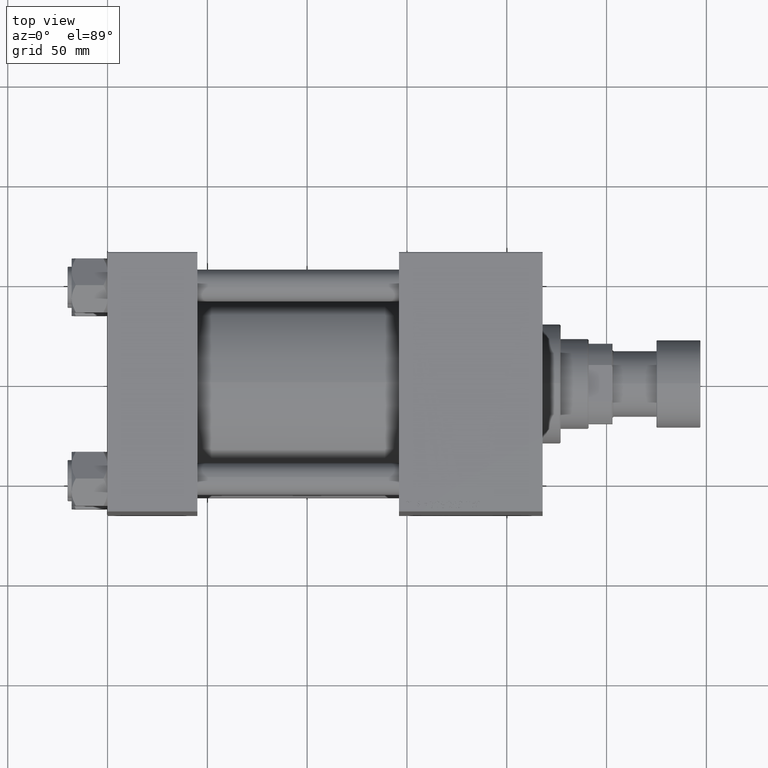
[diagram: clean part render]
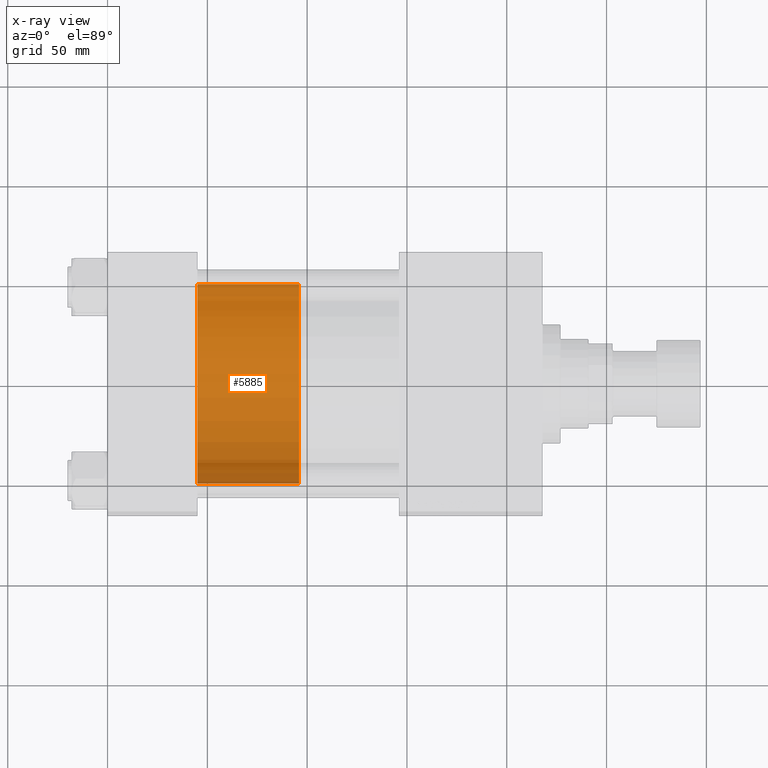
[diagram: x-ray — body ghosted, one internal face saturated and labeled with its STEP entity id]
A machine part, top view, then the same camera in x-ray: the body is ghosted and one INTERNAL B-rep face — a face not visible from any outside direction — is saturated and labeled: STEP entity #5885.
In plain terms, the highlighted cylindrical surface (partial cylindrical patch) has radius 50 mm, axis along (-1, 0, 0).
Its self-contained STEP definition (entity closure, byte-faithful):
#356 = CARTESIAN_POINT ( 'NONE',  ( 0.000000000000000000, 0.000000000000000000, 0.000000000000000000 ) ) ;
#1032 = AXIS2_PLACEMENT_3D ( 'NONE', #2696, #26511, #10978 ) ;
#2696 = CARTESIAN_POINT ( 'NONE',  ( 0.000000000000000000, 0.000000000000000000, 51.00000000000000000 ) ) ;
#3367 = VERTEX_POINT ( 'NONE', #37633 ) ;
#5885 = ADVANCED_FACE ( 'NONE', ( #46157 ), #6273, .T. ) ;
#6273 = CYLINDRICAL_SURFACE ( 'NONE', #29145, 50.00000000000000000 ) ;
#6870 = CARTESIAN_POINT ( 'NONE',  ( 50.00000000000000000, 6.123233995736766085E-15, 51.00000000000000000 ) ) ;
#8760 = VECTOR ( 'NONE', #42346, 1000.000000000000000 ) ;
#9336 = CARTESIAN_POINT ( 'NONE',  ( 50.00000000000000000, 6.123233995736766085E-15, 51.00000000000000000 ) ) ;
#10978 = DIRECTION ( 'NONE',  ( 1.000000000000000000, 0.000000000000000000, 0.000000000000000000 ) ) ;
#12541 = DIRECTION ( 'NONE',  ( 1.000000000000000000, 0.000000000000000000, 0.000000000000000000 ) ) ;
#13467 = CARTESIAN_POINT ( 'NONE',  ( -50.00000000000000000, 0.000000000000000000, 51.00000000000000000 ) ) ;
#13880 = AXIS2_PLACEMENT_3D ( 'NONE', #356, #35336, #12541 ) ;
#16355 = LINE ( 'NONE', #6870, #8760 ) ;
#18444 = DIRECTION ( 'NONE',  ( -0.000000000000000000, -0.000000000000000000, -1.000000000000000000 ) ) ;
#18828 = CIRCLE ( 'NONE', #13880, 50.00000000000000000 ) ;
#21118 = EDGE_CURVE ( 'NONE', #30617, #3367, #18828, .T. ) ;
#22001 = DIRECTION ( 'NONE',  ( -0.000000000000000000, -0.000000000000000000, -1.000000000000000000 ) ) ;
#24327 = ORIENTED_EDGE ( 'NONE', *, *, #31344, .F. ) ;
#24945 = VECTOR ( 'NONE', #22001, 1000.000000000000000 ) ;
#26455 = CARTESIAN_POINT ( 'NONE',  ( 0.000000000000000000, 0.000000000000000000, 51.00000000000000000 ) ) ;
#26511 = DIRECTION ( 'NONE',  ( 0.000000000000000000, 0.000000000000000000, 1.000000000000000000 ) ) ;
#27873 = EDGE_LOOP ( 'NONE', ( #24327, #35175, #36917, #31154 ) ) ;
#28601 = VERTEX_POINT ( 'NONE', #9336 ) ;
#29145 = AXIS2_PLACEMENT_3D ( 'NONE', #26455, #18444, #50801 ) ;
#30283 = VERTEX_POINT ( 'NONE', #35276 ) ;
#30617 = VERTEX_POINT ( 'NONE', #34468 ) ;
#31154 = ORIENTED_EDGE ( 'NONE', *, *, #33165, .F. ) ;
#31344 = EDGE_CURVE ( 'NONE', #28601, #30283, #31643, .T. ) ;
#31643 = CIRCLE ( 'NONE', #1032, 50.00000000000000000 ) ;
#33165 = EDGE_CURVE ( 'NONE', #30283, #3367, #36252, .T. ) ;
#34468 = CARTESIAN_POINT ( 'NONE',  ( 50.00000000000000000, 6.123233995736766085E-15, 0.000000000000000000 ) ) ;
#35175 = ORIENTED_EDGE ( 'NONE', *, *, #43490, .T. ) ;
#35276 = CARTESIAN_POINT ( 'NONE',  ( -50.00000000000000000, 0.000000000000000000, 51.00000000000000000 ) ) ;
#35336 = DIRECTION ( 'NONE',  ( 0.000000000000000000, 0.000000000000000000, 1.000000000000000000 ) ) ;
#36252 = LINE ( 'NONE', #13467, #24945 ) ;
#36917 = ORIENTED_EDGE ( 'NONE', *, *, #21118, .T. ) ;
#37633 = CARTESIAN_POINT ( 'NONE',  ( -50.00000000000000000, 0.000000000000000000, 0.000000000000000000 ) ) ;
#42346 = DIRECTION ( 'NONE',  ( -0.000000000000000000, -0.000000000000000000, -1.000000000000000000 ) ) ;
#43490 = EDGE_CURVE ( 'NONE', #28601, #30617, #16355, .T. ) ;
#46157 = FACE_OUTER_BOUND ( 'NONE', #27873, .T. ) ;
#50801 = DIRECTION ( 'NONE',  ( -1.000000000000000000, 0.000000000000000000, 0.000000000000000000 ) ) ;